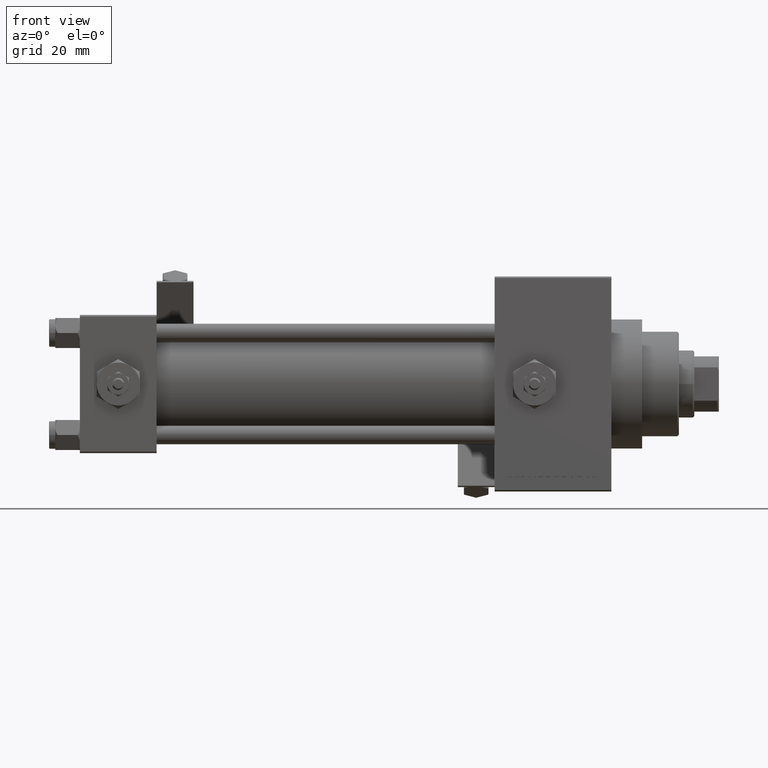
[diagram: clean part render]
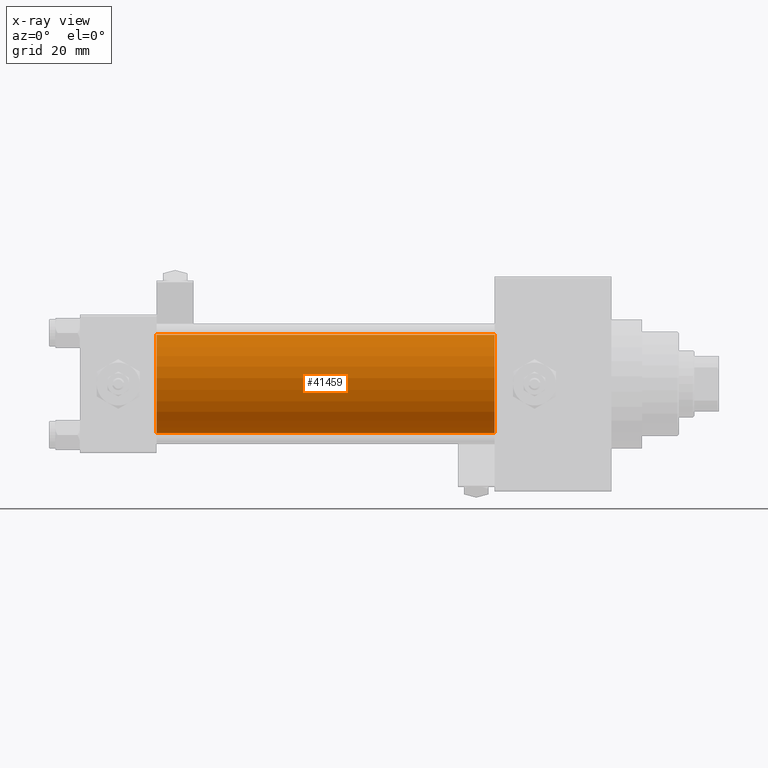
[diagram: x-ray — body ghosted, one internal face saturated and labeled with its STEP entity id]
A machine part, front view, then the same camera in x-ray: the body is ghosted and one INTERNAL B-rep face — a face not visible from any outside direction — is saturated and labeled: STEP entity #41459.
In plain terms, the highlighted cylindrical surface (partial cylindrical patch) has radius 16 mm, axis along (-1, -0, -0).
Its self-contained STEP definition (entity closure, byte-faithful):
#909 = LINE ( 'NONE', #16417, #47687 ) ;
#2111 = ORIENTED_EDGE ( 'NONE', *, *, #26413, .T. ) ;
#2570 = CARTESIAN_POINT ( 'NONE',  ( 135.0000000000000000, -6.426503353294456087E-16, -16.00000000000000000 ) ) ;
#3810 = CARTESIAN_POINT ( 'NONE',  ( 25.00000000000000000, -2.602085213965210642E-15, 0.000000000000000000 ) ) ;
#4387 = CARTESIAN_POINT ( 'NONE',  ( 135.0000000000000000, -6.426503353294456087E-16, -16.00000000000000000 ) ) ;
#6904 = CYLINDRICAL_SURFACE ( 'NONE', #34693, 16.00000000000000000 ) ;
#7153 = CARTESIAN_POINT ( 'NONE',  ( 135.0000000000000000, -2.602085213965210642E-15, 0.000000000000000000 ) ) ;
#8542 = DIRECTION ( 'NONE',  ( -1.000000000000000000, -0.000000000000000000, -0.000000000000000000 ) ) ;
#10718 = DIRECTION ( 'NONE',  ( -1.000000000000000000, -0.000000000000000000, -0.000000000000000000 ) ) ;
#10947 = DIRECTION ( 'NONE',  ( 0.000000000000000000, 0.000000000000000000, -1.000000000000000000 ) ) ;
#12805 = EDGE_CURVE ( 'NONE', #50150, #44597, #23110, .T. ) ;
#14206 = VERTEX_POINT ( 'NONE', #2570 ) ;
#15031 = DIRECTION ( 'NONE',  ( 0.000000000000000000, 0.000000000000000000, 1.000000000000000000 ) ) ;
#16417 = CARTESIAN_POINT ( 'NONE',  ( 135.0000000000000000, -2.602085213965210642E-15, 16.00000000000000000 ) ) ;
#17854 = CARTESIAN_POINT ( 'NONE',  ( 135.0000000000000000, -2.602085213965210642E-15, 16.00000000000000000 ) ) ;
#18568 = CARTESIAN_POINT ( 'NONE',  ( 135.0000000000000000, -2.602085213965210642E-15, 0.000000000000000000 ) ) ;
#22384 = FACE_OUTER_BOUND ( 'NONE', #38568, .T. ) ;
#22722 = CIRCLE ( 'NONE', #36472, 16.00000000000000000 ) ;
#23110 = CIRCLE ( 'NONE', #40130, 16.00000000000000000 ) ;
#26178 = DIRECTION ( 'NONE',  ( 1.000000000000000000, 0.000000000000000000, 0.000000000000000000 ) ) ;
#26201 = VECTOR ( 'NONE', #27729, 1000.000000000000000 ) ;
#26413 = EDGE_CURVE ( 'NONE', #14206, #44597, #39139, .T. ) ;
#27407 = ORIENTED_EDGE ( 'NONE', *, *, #45722, .T. ) ;
#27729 = DIRECTION ( 'NONE',  ( -1.000000000000000000, -0.000000000000000000, -0.000000000000000000 ) ) ;
#30030 = CARTESIAN_POINT ( 'NONE',  ( 25.00000000000000000, -6.426503353294456087E-16, -16.00000000000000000 ) ) ;
#33381 = VERTEX_POINT ( 'NONE', #17854 ) ;
#34002 = DIRECTION ( 'NONE',  ( 0.000000000000000000, 0.000000000000000000, -1.000000000000000000 ) ) ;
#34124 = CARTESIAN_POINT ( 'NONE',  ( 25.00000000000000000, -2.602085213965210642E-15, 16.00000000000000000 ) ) ;
#34640 = ORIENTED_EDGE ( 'NONE', *, *, #41081, .F. ) ;
#34693 = AXIS2_PLACEMENT_3D ( 'NONE', #7153, #10718, #15031 ) ;
#36472 = AXIS2_PLACEMENT_3D ( 'NONE', #18568, #26178, #10947 ) ;
#38568 = EDGE_LOOP ( 'NONE', ( #27407, #2111, #39124, #34640 ) ) ;
#39124 = ORIENTED_EDGE ( 'NONE', *, *, #12805, .F. ) ;
#39139 = LINE ( 'NONE', #4387, #26201 ) ;
#40130 = AXIS2_PLACEMENT_3D ( 'NONE', #3810, #45943, #34002 ) ;
#41081 = EDGE_CURVE ( 'NONE', #33381, #50150, #909, .T. ) ;
#41459 = ADVANCED_FACE ( 'NONE', ( #22384 ), #6904, .F. ) ;
#44597 = VERTEX_POINT ( 'NONE', #30030 ) ;
#45722 = EDGE_CURVE ( 'NONE', #33381, #14206, #22722, .T. ) ;
#45943 = DIRECTION ( 'NONE',  ( 1.000000000000000000, 0.000000000000000000, 0.000000000000000000 ) ) ;
#47687 = VECTOR ( 'NONE', #8542, 1000.000000000000000 ) ;
#50150 = VERTEX_POINT ( 'NONE', #34124 ) ;